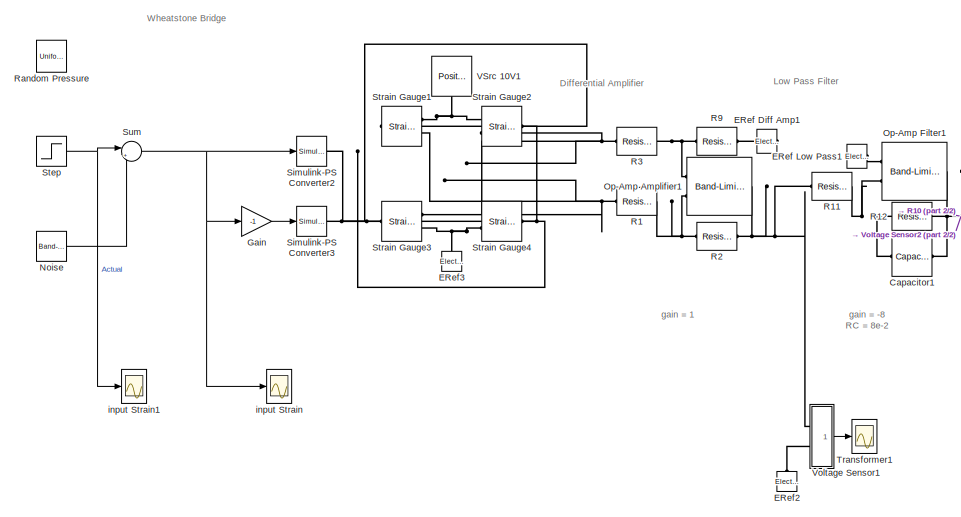
[diagram: root canvas - part 1/2, left side, full height]
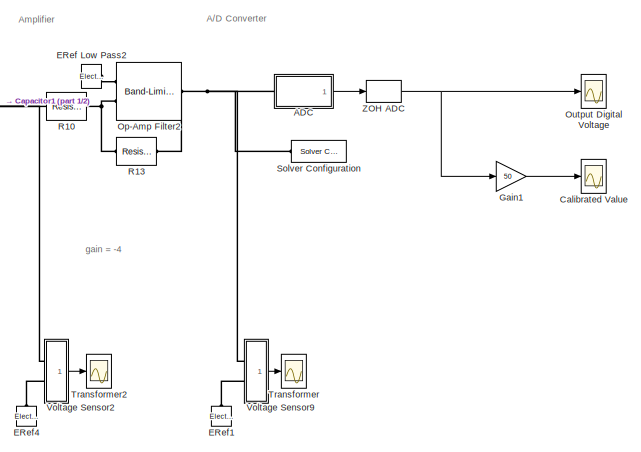
[diagram: root canvas - part 2/2, right side, full height]
MODEL slx_25b5b28c439c
KIND model
CONFIG AbsTol = auto
CONFIG EnableMultiTasking = off
CONFIG FixedStep = auto
CONFIG MaxStep = auto
CONFIG MinStep = auto
CONFIG RelTol = 1e-3
CONFIG SampleTimeConstraint = Unconstrained
CONFIG Solver = VariableStepAuto
CONFIG SolverName = VariableStepAuto
CONFIG StartTime = 0.0
CONFIG StopTime = 10
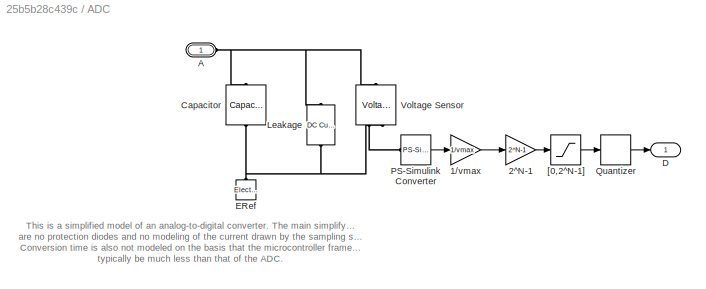
BLOCK [SubSystem] ADC
  NameLocation = top
  Ports = [0, 1, 0, 0, 0, 1]
  RequestExecContextInheritance = off
BLOCK [Gain] ADC/1//vmax
  Gain = 1/vmax
BLOCK [Gain] ADC/2^N-1
  Gain = 2^N-1
BLOCK [PMIOPort] ADC/A
  Side = Left
BLOCK [Reference] ADC/Capacitor  REF=fl_lib/Electrical/Electrical Elements/Capacitor
  NameLocation = left
  Ports = [0, 0, 0, 0, 0, 1, 1]
  SourceBlock = fl_lib/Electrical/Electrical Elements/Capacitor
  SourceProductBaseCode = MT,SS
  SourceType = Capacitor
BLOCK [Outport] ADC/D
  VectorParamsAs1DForOutWhenUnconnected = off
BLOCK [Reference] ADC/ERef  REF=fl_lib/Electrical/Electrical Elements/Electrical Reference
  NameLocation = right
  Ports = [0, 0, 0, 0, 0, 1]
  SourceBlock = fl_lib/Electrical/Electrical Elements/Electrical Reference
  SourceProductBaseCode = MT,SS
  SourceType = Electrical Reference
BLOCK [Reference] ADC/Leakage  REF=fl_lib/Electrical/Electrical Sources/DC Current Source
  NameLocation = left
  Ports = [0, 0, 0, 0, 0, 1, 1]
  SourceBlock = fl_lib/Electrical/Electrical Sources/DC Current Source
  SourceProductBaseCode = MT,SS
  SourceType = DC Current Source
BLOCK [Reference] ADC/PS-Simulink Converter  REF=nesl_utility/PS-Simulink
Converter
  Ports = [0, 1, 0, 0, 0, 1]
  SourceBlock = nesl_utility/PS-Simulink\nConverter
  SourceProductBaseCode = MT,SS
  SourceType = PS-Simulink\nConverter
BLOCK [Quantizer] ADC/Quantizer
BLOCK [Reference] ADC/Voltage Sensor  REF=fl_lib/Electrical/Electrical Sensors/Voltage Sensor
  NameLocation = right
  Ports = [0, 0, 0, 0, 0, 1, 2]
  SourceBlock = fl_lib/Electrical/Electrical Sensors/Voltage Sensor
  SourceProductBaseCode = MT,SS
  SourceType = Voltage Sensor
BLOCK [Saturate] ADC/[0,2^N-1]
  LowerLimit = 0
  NameLocation = top
  UpperLimit = 2^N-1
BLOCK [Scope] Calibrated Value
  Floating = off
  NumInputPorts = 1
  Ports = [1]
  ScopeSpecificationString = Simulink.scopes.TimeScopeBlockCfg('CurrentConfiguration', extmgr.ConfigurationSet(extmgr.Configuration('Core','General UI',true),extmgr.Configuration('Core','Source UI',true),extmgr.Configuration('Sources','WiredSimulink',true,'DataLoggingSaveFormat','StructureWithTime','DataLoggingDecimation','1','DataLoggingMaxPoints','50000','DataLoggingVariableName','ScopeData1'),extmgr.Configuration('Visuals'...<+1738ch>
BLOCK [Reference] Capacitor1  REF=ee_lib/Passive/Capacitor
  Ports = [0, 0, 0, 0, 0, 1, 1]
  SourceBlock = ee_lib/Passive/Capacitor
  SourceProductBaseCode = PS
  SourceType = Capacitor
BLOCK [Reference] ERef Diff Amp1  REF=fl_lib/Electrical/Electrical Elements/Electrical Reference
  NameLocation = top
  Ports = [0, 0, 0, 0, 0, 1]
  SourceBlock = fl_lib/Electrical/Electrical Elements/Electrical Reference
  SourceProductBaseCode = MT,SS
  SourceType = Electrical Reference
BLOCK [Reference] ERef Low Pass1  REF=fl_lib/Electrical/Electrical Elements/Electrical Reference
  NameLocation = top
  Ports = [0, 0, 0, 0, 0, 1]
  SourceBlock = fl_lib/Electrical/Electrical Elements/Electrical Reference
  SourceProductBaseCode = MT,SS
  SourceType = Electrical Reference
BLOCK [Reference] ERef Low Pass2  REF=fl_lib/Electrical/Electrical Elements/Electrical Reference
  NameLocation = top
  Ports = [0, 0, 0, 0, 0, 1]
  SourceBlock = fl_lib/Electrical/Electrical Elements/Electrical Reference
  SourceProductBaseCode = MT,SS
  SourceType = Electrical Reference
BLOCK [Reference] ERef1  REF=fl_lib/Electrical/Electrical Elements/Electrical Reference
  NameLocation = left
  Ports = [0, 0, 0, 0, 0, 1]
  SourceBlock = fl_lib/Electrical/Electrical Elements/Electrical Reference
  SourceProductBaseCode = SS
  SourceType = Electrical Reference
BLOCK [Reference] ERef2  REF=fl_lib/Electrical/Electrical Elements/Electrical Reference
  NameLocation = left
  Ports = [0, 0, 0, 0, 0, 1]
  SourceBlock = fl_lib/Electrical/Electrical Elements/Electrical Reference
  SourceProductBaseCode = SS
  SourceType = Electrical Reference
BLOCK [Reference] ERef3  REF=fl_lib/Electrical/Electrical Elements/Electrical Reference
  NameLocation = left
  Ports = [0, 0, 0, 0, 0, 1]
  SourceBlock = fl_lib/Electrical/Electrical Elements/Electrical Reference
  SourceProductBaseCode = SS
  SourceType = Electrical Reference
BLOCK [Reference] ERef4  REF=fl_lib/Electrical/Electrical Elements/Electrical Reference
  NameLocation = left
  Ports = [0, 0, 0, 0, 0, 1]
  SourceBlock = fl_lib/Electrical/Electrical Elements/Electrical Reference
  SourceProductBaseCode = SS
  SourceType = Electrical Reference
BLOCK [Gain] Gain
  Gain = -1
BLOCK [Gain] Gain1
  Gain = 50
BLOCK [Reference] Noise  REF=simulink/Sources/Band-Limited
White Noise
  Ports = [0, 1]
  SourceBlock = simulink/Sources/Band-Limited\nWhite Noise
  SourceProductBaseCode = SL
  SourceType = Band-Limited White Noise.
BLOCK [Reference] Op-Amp Amplifier1  REF=ee_lib/Integrated Circuits/Band-Limited Op-Amp
  Ports = [0, 0, 0, 0, 0, 2, 1]
  SourceBlock = ee_lib/Integrated Circuits/Band-Limited Op-Amp
  SourceProductBaseCode = PS
  SourceType = Band-Limited Op-Amp
BLOCK [Reference] Op-Amp Filter1  REF=ee_lib/Integrated Circuits/Band-Limited Op-Amp
  Ports = [0, 0, 0, 0, 0, 2, 1]
  SourceBlock = ee_lib/Integrated Circuits/Band-Limited Op-Amp
  SourceProductBaseCode = PS
  SourceType = Band-Limited Op-Amp
BLOCK [Reference] Op-Amp Filter2  REF=ee_lib/Integrated Circuits/Band-Limited Op-Amp
  Ports = [0, 0, 0, 0, 0, 2, 1]
  SourceBlock = ee_lib/Integrated Circuits/Band-Limited Op-Amp
  SourceProductBaseCode = PS
  SourceType = Band-Limited Op-Amp
BLOCK [Scope] Output Digital Voltage
  Floating = off
  NumInputPorts = 1
  Ports = [1]
  ScopeSpecificationString = Simulink.scopes.TimeScopeBlockCfg('CurrentConfiguration', extmgr.ConfigurationSet(extmgr.Configuration('Core','General UI',true),extmgr.Configuration('Core','Source UI',true),extmgr.Configuration('Sources','WiredSimulink',true,'DataLoggingSaveFormat','StructureWithTime','DataLoggingDecimation','1','DataLoggingMaxPoints','50000','DataLoggingVariableName','ScopeData3'),extmgr.Configuration('Visuals'...<+1733ch>
BLOCK [Reference] R1  REF=fl_lib/Electrical/Electrical Elements/Resistor
  Ports = [0, 0, 0, 0, 0, 1, 1]
  SourceBlock = fl_lib/Electrical/Electrical Elements/Resistor
  SourceProductBaseCode = MT,SS
  SourceType = Resistor
BLOCK [Reference] R10  REF=ee_lib/Passive/Resistor
  Ports = [0, 0, 0, 0, 0, 1, 1]
  SourceBlock = ee_lib/Passive/Resistor
  SourceProductBaseCode = PS
  SourceType = Resistor
BLOCK [Reference] R11  REF=fl_lib/Electrical/Electrical Elements/Resistor
  NameLocation = top
  Ports = [0, 0, 0, 0, 0, 1, 1]
  SourceBlock = fl_lib/Electrical/Electrical Elements/Resistor
  SourceProductBaseCode = MT,SS
  SourceType = Resistor
BLOCK [Reference] R12  REF=ee_lib/Passive/Resistor
  Ports = [0, 0, 0, 0, 0, 1, 1]
  SourceBlock = ee_lib/Passive/Resistor
  SourceProductBaseCode = PS
  SourceType = Resistor
BLOCK [Reference] R13  REF=ee_lib/Passive/Resistor
  Ports = [0, 0, 0, 0, 0, 1, 1]
  SourceBlock = ee_lib/Passive/Resistor
  SourceProductBaseCode = PS
  SourceType = Resistor
BLOCK [Reference] R2  REF=fl_lib/Electrical/Electrical Elements/Resistor
  Ports = [0, 0, 0, 0, 0, 1, 1]
  SourceBlock = fl_lib/Electrical/Electrical Elements/Resistor
  SourceProductBaseCode = MT,SS
  SourceType = Resistor
BLOCK [Reference] R3  REF=fl_lib/Electrical/Electrical Elements/Resistor
  NameLocation = top
  Ports = [0, 0, 0, 0, 0, 1, 1]
  SourceBlock = fl_lib/Electrical/Electrical Elements/Resistor
  SourceProductBaseCode = MT,SS
  SourceType = Resistor
BLOCK [Reference] R9  REF=fl_lib/Electrical/Electrical Elements/Resistor
  NameLocation = top
  Ports = [0, 0, 0, 0, 0, 1, 1]
  SourceBlock = fl_lib/Electrical/Electrical Elements/Resistor
  SourceProductBaseCode = MT,SS
  SourceType = Resistor
BLOCK [UniformRandomNumber] Random Pressure 
  Maximum = 1e-4
  Minimum = 0
  SampleTime = 2
BLOCK [Reference] Simulink-PS Converter2  REF=nesl_utility/Simulink-PS
Converter
  NameLocation = top
  Ports = [1, 0, 0, 0, 0, 0, 1]
  SourceBlock = nesl_utility/Simulink-PS\nConverter
  SourceProductBaseCode = MT,SS
  SourceType = Simulink-PS\nConverter
BLOCK [Reference] Simulink-PS Converter3  REF=nesl_utility/Simulink-PS
Converter
  NameLocation = top
  Ports = [1, 0, 0, 0, 0, 0, 1]
  SourceBlock = nesl_utility/Simulink-PS\nConverter
  SourceProductBaseCode = MT,SS
  SourceType = Simulink-PS\nConverter
BLOCK [Reference] Solver Configuration  REF=nesl_utility/Solver
Configuration
  Ports = [0, 0, 0, 0, 0, 0, 1]
  SourceBlock = nesl_utility/Solver\nConfiguration
  SourceProductBaseCode = SS
  SourceType = Solver\nConfiguration
BLOCK [Step] Step
  After = 1e-4
  SampleTime = 0
BLOCK [Reference] Strain Gauge1  REF=ee_lib/Sensors &
Transducers/Strain Gauge
  Ports = [0, 0, 0, 0, 0, 1, 2]
  SourceBlock = ee_lib/Sensors &\nTransducers/Strain Gauge
  SourceProductBaseCode = PS
  SourceType = Strain Gauge
BLOCK [Reference] Strain Gauge2  REF=ee_lib/Sensors &
Transducers/Strain Gauge
  Ports = [0, 0, 0, 0, 0, 1, 2]
  SourceBlock = ee_lib/Sensors &\nTransducers/Strain Gauge
  SourceProductBaseCode = PS
  SourceType = Strain Gauge
BLOCK [Reference] Strain Gauge3  REF=ee_lib/Sensors &
Transducers/Strain Gauge
  Ports = [0, 0, 0, 0, 0, 1, 2]
  SourceBlock = ee_lib/Sensors &\nTransducers/Strain Gauge
  SourceProductBaseCode = PS
  SourceType = Strain Gauge
BLOCK [Reference] Strain Gauge4  REF=ee_lib/Sensors &
Transducers/Strain Gauge
  Ports = [0, 0, 0, 0, 0, 1, 2]
  SourceBlock = ee_lib/Sensors &\nTransducers/Strain Gauge
  SourceProductBaseCode = PS
  SourceType = Strain Gauge
BLOCK [Sum] Sum
  Inputs = |++
  Ports = [2, 1]
BLOCK [Scope] Transformer
  Floating = off
  NumInputPorts = 1
  Ports = [1]
  ScopeSpecificationString = Simulink.scopes.TimeScopeBlockCfg('CurrentConfiguration', extmgr.ConfigurationSet(extmgr.Configuration('Core','General UI',true),extmgr.Configuration('Core','Source UI',true),extmgr.Configuration('Sources','WiredSimulink',true,'DataLoggingSaveFormat','StructureWithTime','DataLoggingDecimation','1','DataLoggingMaxPoints','50000','DataLoggingVariableName','ScopeData1'),extmgr.Configuration('Visuals'...<+1706ch>
BLOCK [Scope] Transformer1
  Floating = off
  NumInputPorts = 1
  Ports = [1]
  ScopeSpecificationString = Simulink.scopes.TimeScopeBlockCfg('CurrentConfiguration', extmgr.ConfigurationSet(extmgr.Configuration('Core','General UI',true),extmgr.Configuration('Core','Source UI',true),extmgr.Configuration('Sources','WiredSimulink',true,'DataLoggingSaveFormat','StructureWithTime','DataLoggingDecimation','1','DataLoggingMaxPoints','50000','DataLoggingVariableName','ScopeData2'),extmgr.Configuration('Visuals'...<+1732ch>
BLOCK [Scope] Transformer2
  Floating = off
  NumInputPorts = 1
  Ports = [1]
  ScopeSpecificationString = Simulink.scopes.TimeScopeBlockCfg('CurrentConfiguration', extmgr.ConfigurationSet(extmgr.Configuration('Core','General UI',true),extmgr.Configuration('Core','Source UI',true),extmgr.Configuration('Sources','WiredSimulink',true,'DataLoggingSaveFormat','StructureWithTime','DataLoggingDecimation','1','DataLoggingMaxPoints','50000','DataLoggingVariableName','ScopeData3'),extmgr.Configuration('Visuals'...<+1708ch>
BLOCK [Reference] VSrc 10V1  REF=ee_lib/Sources/Positive Supply Rail
  NameLocation = right
  Ports = [0, 0, 0, 0, 0, 0, 1]
  SourceBlock = ee_lib/Sources/Positive Supply Rail
  SourceProductBaseCode = PS
  SourceType = Positive Supply Rail
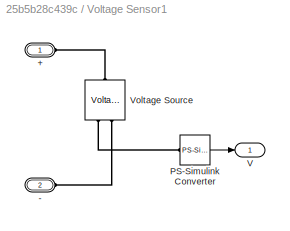
BLOCK [SubSystem] Voltage Sensor1
  Ports = [0, 1, 0, 0, 0, 2]
  RequestExecContextInheritance = off
BLOCK [PMIOPort] Voltage Sensor1/+
  Side = Left
BLOCK [PMIOPort] Voltage Sensor1/-
  Port = 2
  Side = Left
BLOCK [Reference] Voltage Sensor1/PS-Simulink Converter  REF=nesl_utility/PS-Simulink
Converter
  NameLocation = top
  Ports = [0, 1, 0, 0, 0, 1]
  SourceBlock = nesl_utility/PS-Simulink\nConverter
  SourceProductBaseCode = SS
  SourceType = PS-Simulink\nConverter
BLOCK [Outport] Voltage Sensor1/V
BLOCK [Reference] Voltage Sensor1/Voltage Source  REF=fl_lib/Electrical/Electrical Sensors/Voltage Sensor
  NameLocation = right
  Ports = [0, 0, 0, 0, 0, 1, 2]
  SourceBlock = fl_lib/Electrical/Electrical Sensors/Voltage Sensor
  SourceProductBaseCode = SS
  SourceType = Voltage Sensor
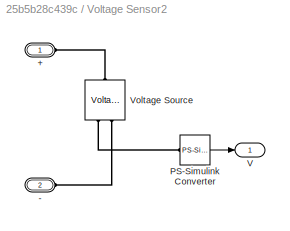
BLOCK [SubSystem] Voltage Sensor2
  Ports = [0, 1, 0, 0, 0, 2]
  RequestExecContextInheritance = off
BLOCK [PMIOPort] Voltage Sensor2/+
  Side = Left
BLOCK [PMIOPort] Voltage Sensor2/-
  Port = 2
  Side = Left
BLOCK [Reference] Voltage Sensor2/PS-Simulink Converter  REF=nesl_utility/PS-Simulink
Converter
  NameLocation = top
  Ports = [0, 1, 0, 0, 0, 1]
  SourceBlock = nesl_utility/PS-Simulink\nConverter
  SourceProductBaseCode = SS
  SourceType = PS-Simulink\nConverter
BLOCK [Outport] Voltage Sensor2/V
BLOCK [Reference] Voltage Sensor2/Voltage Source  REF=fl_lib/Electrical/Electrical Sensors/Voltage Sensor
  NameLocation = right
  Ports = [0, 0, 0, 0, 0, 1, 2]
  SourceBlock = fl_lib/Electrical/Electrical Sensors/Voltage Sensor
  SourceProductBaseCode = SS
  SourceType = Voltage Sensor
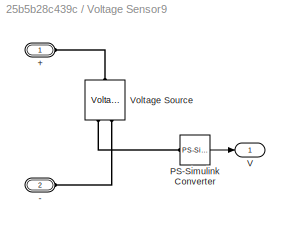
BLOCK [SubSystem] Voltage Sensor9
  Ports = [0, 1, 0, 0, 0, 2]
  RequestExecContextInheritance = off
BLOCK [PMIOPort] Voltage Sensor9/+
  Side = Left
BLOCK [PMIOPort] Voltage Sensor9/-
  Port = 2
  Side = Left
BLOCK [Reference] Voltage Sensor9/PS-Simulink Converter  REF=nesl_utility/PS-Simulink
Converter
  NameLocation = top
  Ports = [0, 1, 0, 0, 0, 1]
  SourceBlock = nesl_utility/PS-Simulink\nConverter
  SourceProductBaseCode = SS
  SourceType = PS-Simulink\nConverter
BLOCK [Outport] Voltage Sensor9/V
BLOCK [Reference] Voltage Sensor9/Voltage Source  REF=fl_lib/Electrical/Electrical Sensors/Voltage Sensor
  NameLocation = right
  Ports = [0, 0, 0, 0, 0, 1, 2]
  SourceBlock = fl_lib/Electrical/Electrical Sensors/Voltage Sensor
  SourceProductBaseCode = SS
  SourceType = Voltage Sensor
BLOCK [ZeroOrderHold] ZOH ADC
  NameLocation = top
  SampleTime = 0.01
BLOCK [Scope] input Strain
  Floating = off
  NumInputPorts = 1
  Ports = [1]
  ScopeSpecificationString = Simulink.scopes.TimeScopeBlockCfg('CurrentConfiguration', extmgr.ConfigurationSet(extmgr.Configuration('Core','General UI',true),extmgr.Configuration('Core','Source UI',true),extmgr.Configuration('Sources','WiredSimulink',true,'DataLoggingSaveFormat','StructureWithTime','DataLoggingDecimation','1','DataLoggingMaxPoints','50000','DataLoggingVariableName','ScopeData5'),extmgr.Configuration('Visuals'...<+1690ch>
BLOCK [Scope] input Strain1
  Floating = off
  NumInputPorts = 1
  Ports = [1]
  ScopeSpecificationString = Simulink.scopes.TimeScopeBlockCfg('CurrentConfiguration', extmgr.ConfigurationSet(extmgr.Configuration('Core','General UI',true),extmgr.Configuration('Core','Source UI',true),extmgr.Configuration('Sources','WiredSimulink',true,'DataLoggingSaveFormat','StructureWithTime','DataLoggingDecimation','1','DataLoggingMaxPoints','50000','DataLoggingVariableName','ScopeData1'),extmgr.Configuration('Visuals'...<+1695ch>
ANNOTATION (root): A/D Converter
ANNOTATION (root): Amplifier
ANNOTATION (root): Differential Amplifier
ANNOTATION (root): Low Pass Filter
ANNOTATION (root): Wheatstone Bridge
ANNOTATION (root): gain = -4
ANNOTATION (root): gain = -8 RC = 8e-2
ANNOTATION (root): gain = 1
ANNOTATION ADC: This is a simplified model of an analog-to-digital converter. The main simplifying assumptions are no protection diodes and no modeling of the current drawn by the sampling switch. Conversion time is also not modeled on the basis that the microcontroller frame rate will typically be much less than that of the ADC.
LINE ADC/1//vmax:1 -> ADC/2^N-1:1
LINE ADC/2^N-1:1 -> ADC/[0,2^N-1]:1
LINE ADC/PS-Simulink Converter:1 -> ADC/1//vmax:1
LINE ADC/Quantizer:1 -> ADC/D:1
LINE ADC/[0,2^N-1]:1 -> ADC/Quantizer:1
LINE ADC:1 -> ZOH ADC:1
LINE Gain1:1 -> Calibrated Value:1
LINE Gain:1 -> Simulink-PS Converter3:1
LINE Noise:1 -> Sum:2
NET Step:1 -> Sum:1, input Strain1:1
NET Sum:1 -> Gain:1, Simulink-PS Converter2:1, input Strain:1
LINE Voltage Sensor1/PS-Simulink Converter:1 -> Voltage Sensor1/V:1
LINE Voltage Sensor1:1 -> Transformer1:1
LINE Voltage Sensor2/PS-Simulink Converter:1 -> Voltage Sensor2/V:1
LINE Voltage Sensor2:1 -> Transformer2:1
LINE Voltage Sensor9/PS-Simulink Converter:1 -> Voltage Sensor9/V:1
LINE Voltage Sensor9:1 -> Transformer:1
NET ZOH ADC:1 -> Gain1:1, Output Digital Voltage:1
PNET net1: ADC/A:RConn1 -- ADC/Capacitor:LConn1 -- ADC/Leakage:RConn1 -- ADC/Voltage Sensor:LConn1
PNET net2: ADC/Capacitor:RConn1 -- ADC/ERef:LConn1 -- ADC/Leakage:LConn1 -- ADC/Voltage Sensor:RConn2
PLINE ADC/PS-Simulink Converter:LConn1 -- ADC/Voltage Sensor:RConn1
PNET net3: ADC:LConn1 -- Op-Amp Filter2:RConn1 -- R13:RConn1 -- Solver Configuration:RConn1 -- Voltage Sensor9:LConn1
PNET net4: Capacitor1:LConn1 -- Op-Amp Filter1:LConn2 -- R11:RConn1 -- R12:LConn1
PNET net5: Capacitor1:RConn1 -- Op-Amp Filter1:RConn1 -- R10:LConn1 -- R12:RConn1 -- Voltage Sensor2:LConn1
PLINE ERef Diff Amp1:LConn1 -- R9:RConn1
PLINE ERef Low Pass1:LConn1 -- Op-Amp Filter1:LConn1
PLINE ERef Low Pass2:LConn1 -- Op-Amp Filter2:LConn1
PLINE ERef1:LConn1 -- Voltage Sensor9:LConn2
PLINE ERef2:LConn1 -- Voltage Sensor1:LConn2
PNET net6: ERef3:LConn1 -- Strain Gauge3:RConn2 -- Strain Gauge4:RConn2
PLINE ERef4:LConn1 -- Voltage Sensor2:LConn2
PNET net7: Op-Amp Amplifier1:LConn1 -- R3:RConn1 -- R9:LConn1
PNET net8: Op-Amp Amplifier1:LConn2 -- R1:RConn1 -- R2:LConn1
PNET net9: Op-Amp Amplifier1:RConn1 -- R11:LConn1 -- R2:RConn1 -- Voltage Sensor1:LConn1
PNET net10: Op-Amp Filter2:LConn2 -- R10:RConn1 -- R13:LConn1
PNET net11: R1:LConn1 -- Strain Gauge1:RConn2 -- Strain Gauge3:RConn1
PNET net12: R3:LConn1 -- Strain Gauge2:RConn2 -- Strain Gauge4:RConn1
PNET net13: Simulink-PS Converter2:RConn1 -- Strain Gauge1:LConn1 -- Strain Gauge4:LConn1
PNET net14: Simulink-PS Converter3:RConn1 -- Strain Gauge2:LConn1 -- Strain Gauge3:LConn1
PNET net15: Strain Gauge1:RConn1 -- Strain Gauge2:RConn1 -- VSrc 10V1:RConn1
PLINE Voltage Sensor1/+:RConn1 -- Voltage Sensor1/Voltage Source:LConn1
PLINE Voltage Sensor1/-:RConn1 -- Voltage Sensor1/Voltage Source:RConn2
PLINE Voltage Sensor1/PS-Simulink Converter:LConn1 -- Voltage Sensor1/Voltage Source:RConn1
PLINE Voltage Sensor2/+:RConn1 -- Voltage Sensor2/Voltage Source:LConn1
PLINE Voltage Sensor2/-:RConn1 -- Voltage Sensor2/Voltage Source:RConn2
PLINE Voltage Sensor2/PS-Simulink Converter:LConn1 -- Voltage Sensor2/Voltage Source:RConn1
PLINE Voltage Sensor9/+:RConn1 -- Voltage Sensor9/Voltage Source:LConn1
PLINE Voltage Sensor9/-:RConn1 -- Voltage Sensor9/Voltage Source:RConn2
PLINE Voltage Sensor9/PS-Simulink Converter:LConn1 -- Voltage Sensor9/Voltage Source:RConn1
note: NET lines group one-source signal fan-out (src -> all destinations, sorted); 1:1 wires keep LINE; PNET lines group multi-terminal physical nets as a canonical sorted terminal list (undirected conserving connections); 2-terminal nets keep the pairwise PLINE form
